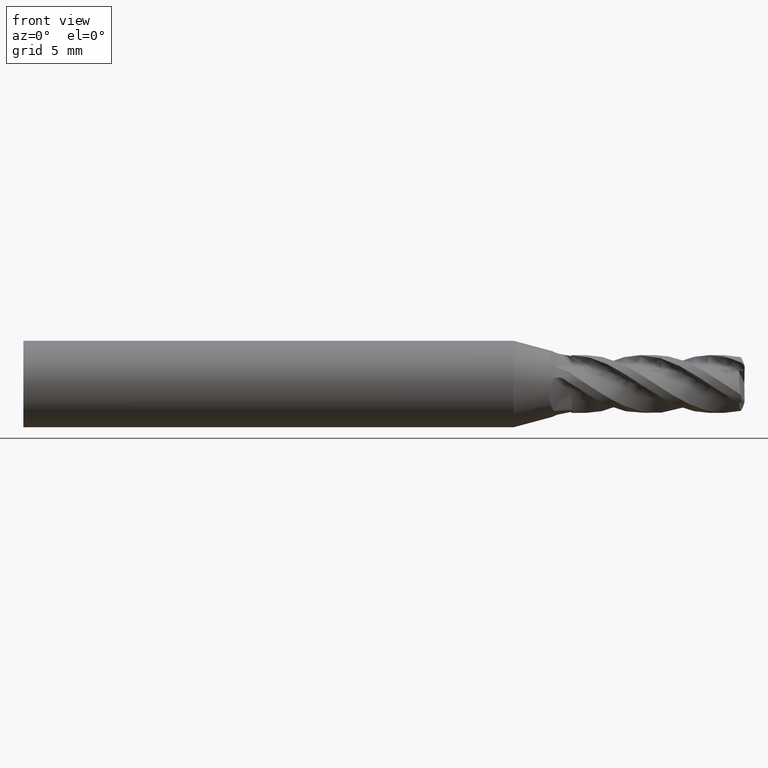
[diagram: clean part render]
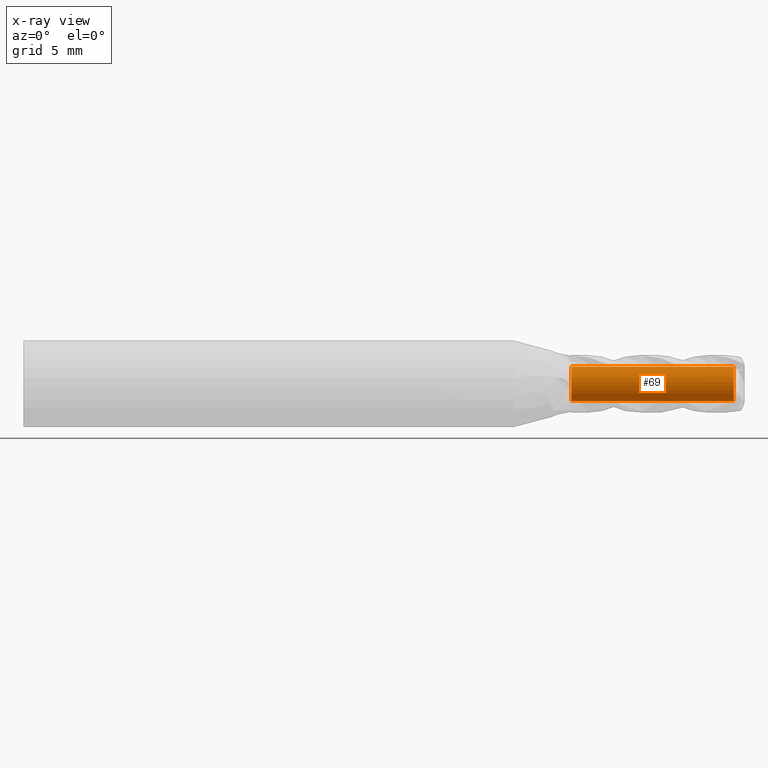
[diagram: x-ray — body ghosted, one internal face saturated and labeled with its STEP entity id]
A machine part, front view, then the same camera in x-ray: the body is ghosted and one INTERNAL B-rep face — a face not visible from any outside direction — is saturated and labeled: STEP entity #69.
In plain terms, the highlighted cylindrical surface (edge-blend (fillet) strip) has radius 1.2 mm, axis along (-1, -0, -0).
Its self-contained STEP definition (entity closure, byte-faithful):
#69 = ADVANCED_FACE ( 'NONE', ( #7123 ), #7112, .F. ) ;
#92 = EDGE_CURVE ( 'NONE', #7030, #7020, #7118, .T. ) ;
#177 = EDGE_CURVE ( 'NONE', #6992, #7020, #7277, .T. ) ;
#220 = EDGE_CURVE ( 'NONE', #7023, #7030, #7176, .T. ) ;
#258 = AXIS2_PLACEMENT_3D ( 'NONE', #3038, #3043, #3044 ) ;
#261 = EDGE_CURVE ( 'NONE', #7023, #6992, #7141, .T. ) ;
#296 = AXIS2_PLACEMENT_3D ( 'NONE', #6600, #6599, #6598 ) ;
#336 = AXIS2_PLACEMENT_3D ( 'NONE', #6645, #6665, #6666 ) ;
#2680 = CARTESIAN_POINT ( 'NONE',  ( -39.76065438357068200, 0.0000000000000000000, 1.200000000000011100 ) ) ;
#2686 = DIRECTION ( 'NONE',  ( -1.000000000000000000, -0.0000000000000000000, -0.0000000000000000000 ) ) ;
#2848 = CARTESIAN_POINT ( 'NONE',  ( -39.76065438357068200, 1.469576158976837100E-016, -1.200000000000011100 ) ) ;
#2849 = DIRECTION ( 'NONE',  ( -1.000000000000000000, -0.0000000000000000000, -0.0000000000000000000 ) ) ;
#3038 = CARTESIAN_POINT ( 'NONE',  ( 13.24563656610462700, 0.0000000000000000000, 0.0000000000000000000 ) ) ;
#3043 = DIRECTION ( 'NONE',  ( -1.000000000000000000, -0.0000000000000000000, -0.0000000000000000000 ) ) ;
#3044 = DIRECTION ( 'NONE',  ( 0.0000000000000000000, 0.0000000000000000000, 1.000000000000000000 ) ) ;
#4922 = CARTESIAN_POINT ( 'NONE',  ( 13.24563656610462700, 0.0000000000000000000, 1.200000000000011100 ) ) ;
#4979 = CARTESIAN_POINT ( 'NONE',  ( 2.000000000000001800, 0.0000000000000000000, 1.200000000000011100 ) ) ;
#4981 = CARTESIAN_POINT ( 'NONE',  ( 13.24563656610462700, 1.469576158976837100E-016, -1.200000000000011100 ) ) ;
#4987 = CARTESIAN_POINT ( 'NONE',  ( 2.000000000000001800, 1.469576158976837100E-016, -1.200000000000011100 ) ) ;
#6598 = DIRECTION ( 'NONE',  ( 0.0000000000000000000, 0.0000000000000000000, 1.000000000000000000 ) ) ;
#6599 = DIRECTION ( 'NONE',  ( -1.000000000000000000, -0.0000000000000000000, -0.0000000000000000000 ) ) ;
#6600 = CARTESIAN_POINT ( 'NONE',  ( -39.76065438357068200, 0.0000000000000000000, 0.0000000000000000000 ) ) ;
#6645 = CARTESIAN_POINT ( 'NONE',  ( 2.000000000000001800, 0.0000000000000000000, 0.0000000000000000000 ) ) ;
#6665 = DIRECTION ( 'NONE',  ( -1.000000000000000000, -0.0000000000000000000, -0.0000000000000000000 ) ) ;
#6666 = DIRECTION ( 'NONE',  ( 0.0000000000000000000, 0.0000000000000000000, 1.000000000000000000 ) ) ;
#6992 = VERTEX_POINT ( 'NONE', #4922 ) ;
#7020 = VERTEX_POINT ( 'NONE', #4979 ) ;
#7023 = VERTEX_POINT ( 'NONE', #4981 ) ;
#7030 = VERTEX_POINT ( 'NONE', #4987 ) ;
#7112 = CYLINDRICAL_SURFACE ( 'NONE', #296, 1.200000000000011100 ) ;
#7118 = CIRCLE ( 'NONE', #336, 1.200000000000011100 ) ;
#7123 = FACE_OUTER_BOUND ( 'NONE', #7186, .T. ) ;
#7141 = CIRCLE ( 'NONE', #258, 1.200000000000011100 ) ;
#7176 = LINE ( 'NONE', #2848, #7361 ) ;
#7179 = VECTOR ( 'NONE', #2686, 1000.000000000000000 ) ;
#7186 = EDGE_LOOP ( 'NONE', ( #7295, #7647, #7298, #7296 ) ) ;
#7277 = LINE ( 'NONE', #2680, #7179 ) ;
#7295 = ORIENTED_EDGE ( 'NONE', *, *, #261, .F. ) ;
#7296 = ORIENTED_EDGE ( 'NONE', *, *, #177, .F. ) ;
#7298 = ORIENTED_EDGE ( 'NONE', *, *, #92, .T. ) ;
#7361 = VECTOR ( 'NONE', #2849, 1000.000000000000000 ) ;
#7647 = ORIENTED_EDGE ( 'NONE', *, *, #220, .T. ) ;